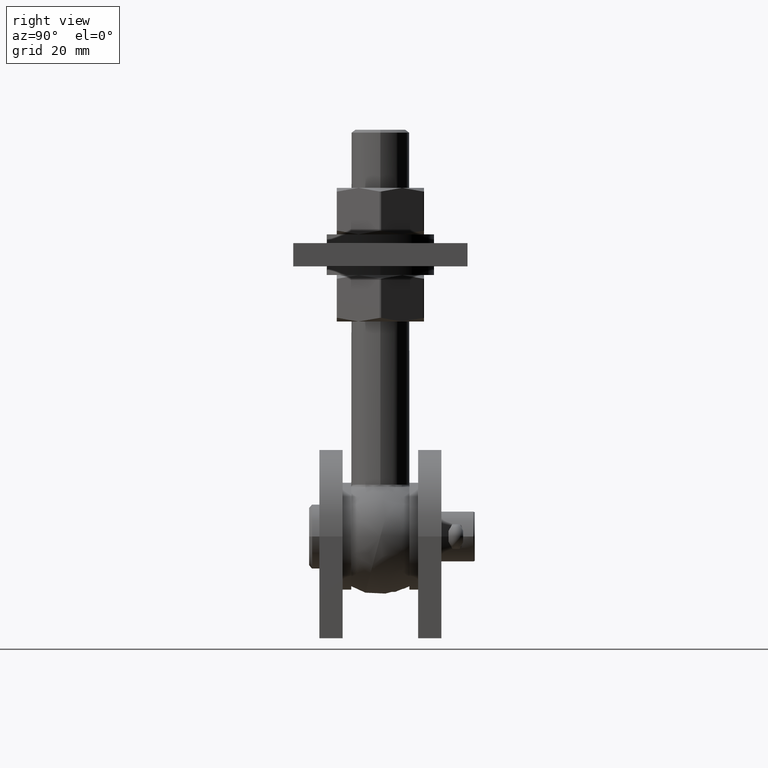
[diagram: clean part render]
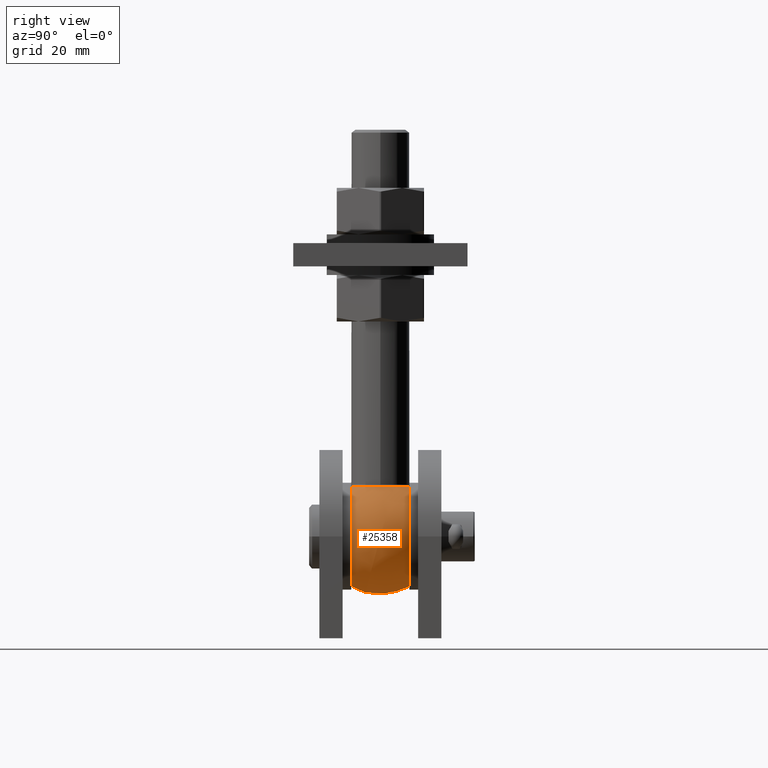
[diagram: same view with one face highlighted and labeled with its STEP entity id]
A machine part, right view. The second image highlights one B-rep face of the part: STEP entity #25358.
In plain terms, the highlighted spherical surface has radius 20 mm.
Its self-contained STEP definition (entity closure, byte-faithful):
#499 = ORIENTED_EDGE ( 'NONE', *, *, #11812, .T. ) ;
#1087 = CIRCLE ( 'NONE', #25960, 17.32050807568877460 ) ;
#1152 = EDGE_LOOP ( 'NONE', ( #12107, #2032, #499, #15324 ) ) ;
#1402 = CARTESIAN_POINT ( 'NONE',  ( 0.000000000000000000, 0.000000000000000000, 17.03670839999839259 ) ) ;
#1788 = DIRECTION ( 'NONE',  ( 1.000000000000000000, -0.000000000000000000, 0.000000000000000000 ) ) ;
#2028 = AXIS2_PLACEMENT_3D ( 'NONE', #20180, #3010, #5691 ) ;
#2032 = ORIENTED_EDGE ( 'NONE', *, *, #27973, .T. ) ;
#3010 = DIRECTION ( 'NONE',  ( -0.000000000000000000, -1.000000000000000000, -1.836970198721029688E-16 ) ) ;
#3572 = DIRECTION ( 'NONE',  ( 0.000000000000000000, 2.003086131649545457E-16, -1.000000000000000000 ) ) ;
#5691 = DIRECTION ( 'NONE',  ( 0.000000000000000000, 2.003086131649545457E-16, -1.000000000000000000 ) ) ;
#5809 = DIRECTION ( 'NONE',  ( -0.000000000000000000, -1.000000000000000000, -1.836970198721029688E-16 ) ) ;
#5953 = CARTESIAN_POINT ( 'NONE',  ( -3.122589773477142838, -10.00000000000000533, 17.03670839999839259 ) ) ;
#7798 = SPHERICAL_SURFACE ( 'NONE', #11289, 20.00000000000000000 ) ;
#8638 = DIRECTION ( 'NONE',  ( 0.000000000000000000, 1.836970198721029441E-16, -1.000000000000000000 ) ) ;
#8728 = VERTEX_POINT ( 'NONE', #10501 ) ;
#10501 = CARTESIAN_POINT ( 'NONE',  ( 3.122589773477165931, 9.999999999999996447, 17.03670839999839259 ) ) ;
#11289 = AXIS2_PLACEMENT_3D ( 'NONE', #23363, #1788, #8638 ) ;
#11444 = DIRECTION ( 'NONE',  ( -1.000000000000000000, 0.000000000000000000, 0.000000000000000000 ) ) ;
#11812 = EDGE_CURVE ( 'NONE', #12569, #8728, #15782, .T. ) ;
#11916 = CIRCLE ( 'NONE', #14391, 10.47619047619047272 ) ;
#12107 = ORIENTED_EDGE ( 'NONE', *, *, #16307, .F. ) ;
#12569 = VERTEX_POINT ( 'NONE', #14954 ) ;
#13845 = VERTEX_POINT ( 'NONE', #5953 ) ;
#14391 = AXIS2_PLACEMENT_3D ( 'NONE', #1402, #23580, #11444 ) ;
#14897 = CARTESIAN_POINT ( 'NONE',  ( 0.000000000000000000, 0.000000000000000000, 17.03670839999839259 ) ) ;
#14954 = CARTESIAN_POINT ( 'NONE',  ( -3.122589773477148611, 9.999999999999996447, 17.03670839999839970 ) ) ;
#15324 = ORIENTED_EDGE ( 'NONE', *, *, #16017, .T. ) ;
#15660 = CIRCLE ( 'NONE', #29989, 10.47619047619047272 ) ;
#15782 = CIRCLE ( 'NONE', #2028, 17.32050807568877460 ) ;
#16017 = EDGE_CURVE ( 'NONE', #8728, #31219, #15660, .T. ) ;
#16307 = EDGE_CURVE ( 'NONE', #13845, #31219, #1087, .T. ) ;
#16726 = CARTESIAN_POINT ( 'NONE',  ( 3.122589773477121522, -10.00000000000000533, 17.03670839999839970 ) ) ;
#16943 = DIRECTION ( 'NONE',  ( -1.000000000000000000, 0.000000000000000000, 0.000000000000000000 ) ) ;
#20180 = CARTESIAN_POINT ( 'NONE',  ( 0.000000000000000000, 10.00000000000000000, 3.673940397442059178E-15 ) ) ;
#20519 = CARTESIAN_POINT ( 'NONE',  ( 0.000000000000000000, -10.00000000000000178, -2.658099992726136369E-31 ) ) ;
#23363 = CARTESIAN_POINT ( 'NONE',  ( 0.000000000000000000, 0.000000000000000000, 0.000000000000000000 ) ) ;
#23580 = DIRECTION ( 'NONE',  ( 0.000000000000000000, 0.000000000000000000, -1.000000000000000000 ) ) ;
#25358 = ADVANCED_FACE ( 'NONE', ( #31364 ), #7798, .T. ) ;
#25960 = AXIS2_PLACEMENT_3D ( 'NONE', #20519, #5809, #3572 ) ;
#27973 = EDGE_CURVE ( 'NONE', #13845, #12569, #11916, .T. ) ;
#29989 = AXIS2_PLACEMENT_3D ( 'NONE', #14897, #31455, #16943 ) ;
#31219 = VERTEX_POINT ( 'NONE', #16726 ) ;
#31364 = FACE_OUTER_BOUND ( 'NONE', #1152, .T. ) ;
#31455 = DIRECTION ( 'NONE',  ( 0.000000000000000000, 0.000000000000000000, -1.000000000000000000 ) ) ;